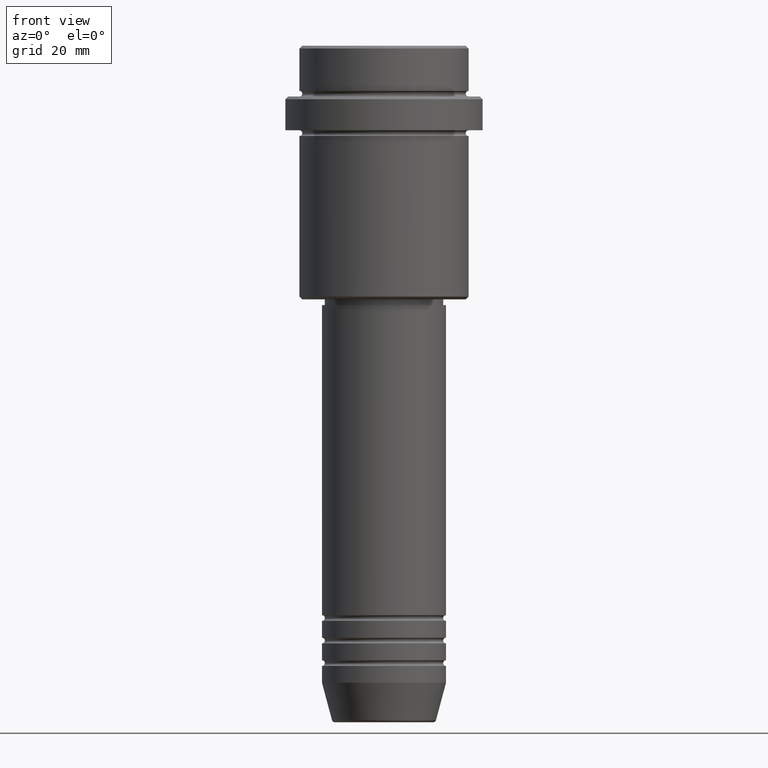
[diagram: clean part render]
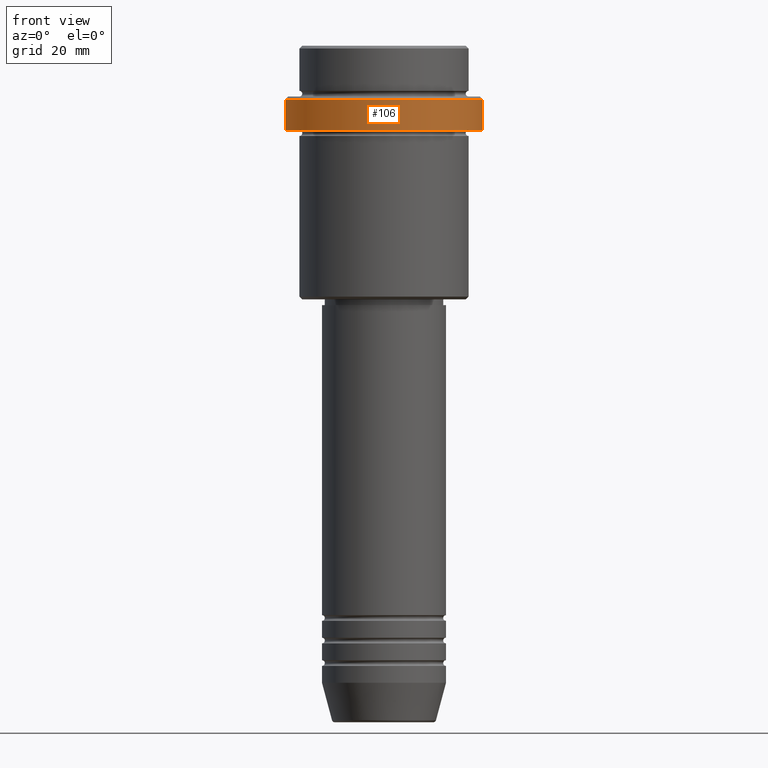
[diagram: same view with one face highlighted and labeled with its STEP entity id]
A machine part, front view. The second image highlights one B-rep face of the part: STEP entity #106.
In plain terms, the highlighted cylindrical surface (partial cylindrical patch) has radius 17.5 mm, axis along (-0, -0, 1).
Its self-contained STEP definition (entity closure, byte-faithful):
#7 = AXIS2_PLACEMENT_3D ( 'NONE', #751, #644, #1195 ) ;
#90 = DIRECTION ( 'NONE',  ( 1.000000000000000000, 0.000000000000000000, 0.000000000000000000 ) ) ;
#95 = ORIENTED_EDGE ( 'NONE', *, *, #1013, .T. ) ;
#106 = ADVANCED_FACE ( 'NONE', ( #543 ), #1306, .T. ) ;
#144 = CIRCLE ( 'NONE', #435, 17.50000000000000000 ) ;
#186 = ORIENTED_EDGE ( 'NONE', *, *, #256, .T. ) ;
#198 = CARTESIAN_POINT ( 'NONE',  ( 17.50000000000000000, 0.000000000000000000, -15.00000000000000000 ) ) ;
#218 = DIRECTION ( 'NONE',  ( 1.000000000000000000, 0.000000000000000000, 0.000000000000000000 ) ) ;
#224 = LINE ( 'NONE', #747, #1355 ) ;
#256 = EDGE_CURVE ( 'NONE', #1117, #338, #224, .T. ) ;
#309 = DIRECTION ( 'NONE',  ( -0.000000000000000000, -0.000000000000000000, 1.000000000000000000 ) ) ;
#338 = VERTEX_POINT ( 'NONE', #484 ) ;
#364 = DIRECTION ( 'NONE',  ( -0.000000000000000000, -0.000000000000000000, 1.000000000000000000 ) ) ;
#435 = AXIS2_PLACEMENT_3D ( 'NONE', #1408, #309, #90 ) ;
#484 = CARTESIAN_POINT ( 'NONE',  ( 17.50000000000000000, 0.000000000000000000, -9.500000000000000000 ) ) ;
#543 = FACE_OUTER_BOUND ( 'NONE', #1150, .T. ) ;
#563 = CARTESIAN_POINT ( 'NONE',  ( -17.50000000000000000, 2.143131898507868248E-15, 0.000000000000000000 ) ) ;
#637 = CARTESIAN_POINT ( 'NONE',  ( 0.000000000000000000, 0.000000000000000000, 0.000000000000000000 ) ) ;
#644 = DIRECTION ( 'NONE',  ( 0.000000000000000000, 0.000000000000000000, -1.000000000000000000 ) ) ;
#647 = EDGE_CURVE ( 'NONE', #338, #791, #732, .T. ) ;
#732 = CIRCLE ( 'NONE', #7, 17.50000000000000000 ) ;
#743 = EDGE_CURVE ( 'NONE', #835, #791, #1008, .T. ) ;
#747 = CARTESIAN_POINT ( 'NONE',  ( 17.50000000000000000, 0.000000000000000000, 0.000000000000000000 ) ) ;
#751 = CARTESIAN_POINT ( 'NONE',  ( 0.000000000000000000, 0.000000000000000000, -9.500000000000000000 ) ) ;
#791 = VERTEX_POINT ( 'NONE', #1245 ) ;
#835 = VERTEX_POINT ( 'NONE', #953 ) ;
#953 = CARTESIAN_POINT ( 'NONE',  ( -17.50000000000000000, 2.143131898507868248E-15, -15.00000000000000000 ) ) ;
#980 = DIRECTION ( 'NONE',  ( -0.000000000000000000, -0.000000000000000000, 1.000000000000000000 ) ) ;
#1008 = LINE ( 'NONE', #563, #1082 ) ;
#1013 = EDGE_CURVE ( 'NONE', #835, #1117, #144, .T. ) ;
#1020 = ORIENTED_EDGE ( 'NONE', *, *, #647, .T. ) ;
#1082 = VECTOR ( 'NONE', #364, 1000.000000000000000 ) ;
#1117 = VERTEX_POINT ( 'NONE', #198 ) ;
#1150 = EDGE_LOOP ( 'NONE', ( #1157, #95, #186, #1020 ) ) ;
#1157 = ORIENTED_EDGE ( 'NONE', *, *, #743, .F. ) ;
#1188 = DIRECTION ( 'NONE',  ( -0.000000000000000000, -0.000000000000000000, 1.000000000000000000 ) ) ;
#1195 = DIRECTION ( 'NONE',  ( 1.000000000000000000, 0.000000000000000000, 0.000000000000000000 ) ) ;
#1245 = CARTESIAN_POINT ( 'NONE',  ( -17.50000000000000000, 2.143131898507868248E-15, -9.500000000000000000 ) ) ;
#1258 = AXIS2_PLACEMENT_3D ( 'NONE', #637, #980, #218 ) ;
#1306 = CYLINDRICAL_SURFACE ( 'NONE', #1258, 17.50000000000000000 ) ;
#1355 = VECTOR ( 'NONE', #1188, 1000.000000000000000 ) ;
#1408 = CARTESIAN_POINT ( 'NONE',  ( 0.000000000000000000, 0.000000000000000000, -15.00000000000000000 ) ) ;